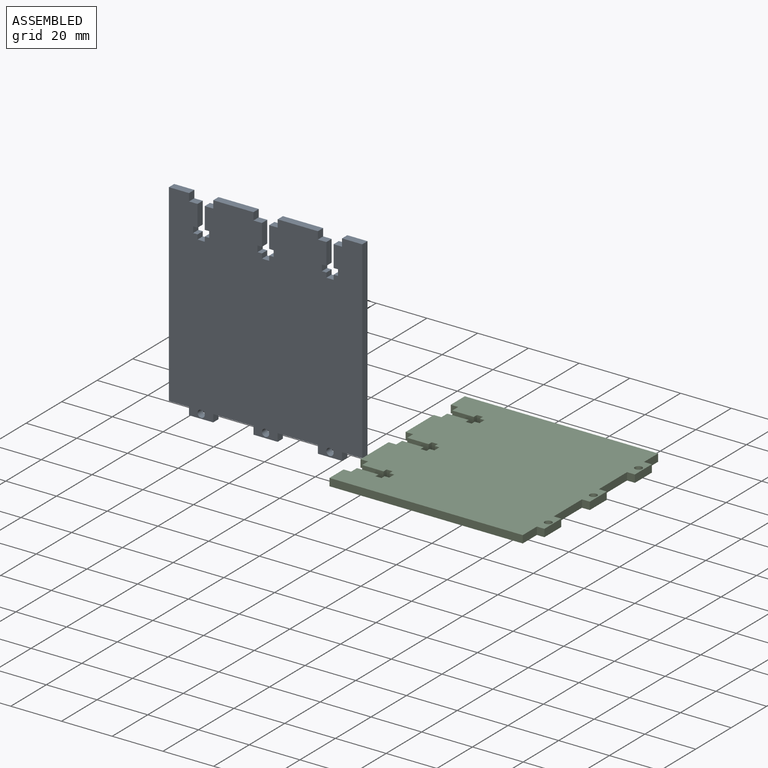
[diagram: assembled view]
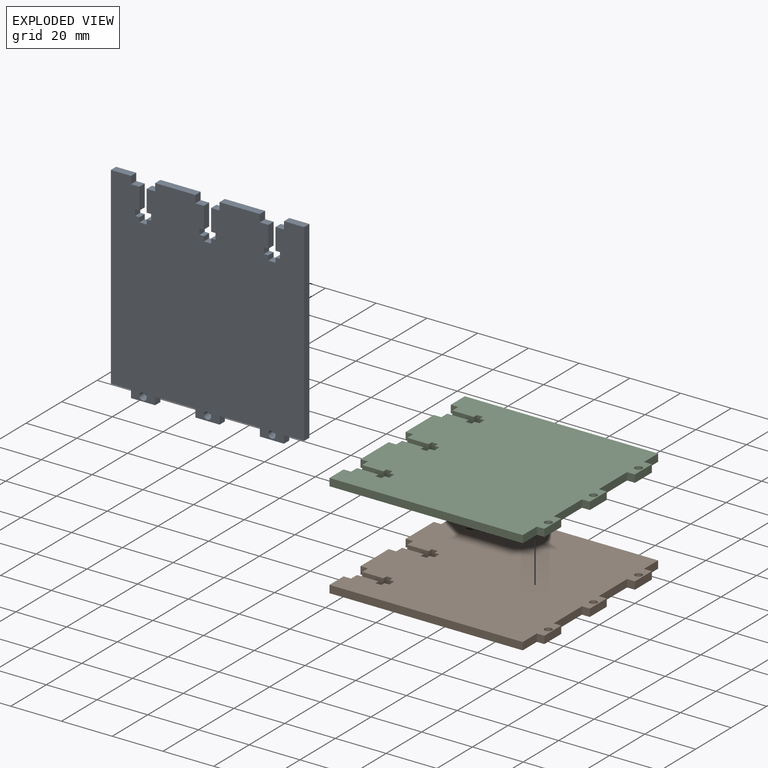
[diagram: exploded view]
GUIDED TOUR — MATED ASSEMBLY (Onshape document ab5c170677e9f72256dc8ad1, AutoMate assembly ab5c170677e9f72256dc8ad1_40245067bf3cdc795a5eb763_26f32a8a9842d287e772c296_default)

This assembly has 3 components, labeled P0..P2 below (a component is one placed occurrence of a part; the same part can appear more than once), held together by 1 mate. A mate is a constraint between two components; its type names the relative motion it leaves free:
  PARALLEL — keeps the two listed directions parallel.
Axis/direction vectors are unit vectors and 'through' points are millimeter coordinates, both in the assembly's world frame.

MATES
  1. PARALLEL "Parallel 1": P1 <-> P0, direction (0.000, 0.000, 1.000) through (18.10, 42.86, 12.25) mm

ASSEMBLY ORDER
  1. P2 — the base component [order verified]
  2. P1 [order verified]
  3. P0 [order verified]
(P1 verified with a relaxed clearance tolerance: the source model stores slight part interference there.)
Order-tag legend:
  [order verified] — this step's position reverses a verified removal order: the component was checked to insert without passing through the ones already placed.

Of the 3 components, 3 carry the full construction recipe — the FeatureScript program that regenerates the part's solid from scratch; the rest are supplied as boundary geometry only.
Each toured component is shown spotlighted twice — in the assembled view, then in the exploded view, where a leader line traces a displaced component back to its assembled socket (saturated green if recipe-attached, orange if geometry-only; every other component desaturated gray) — followed by its recipe or geometry summary and the mates that hold it.
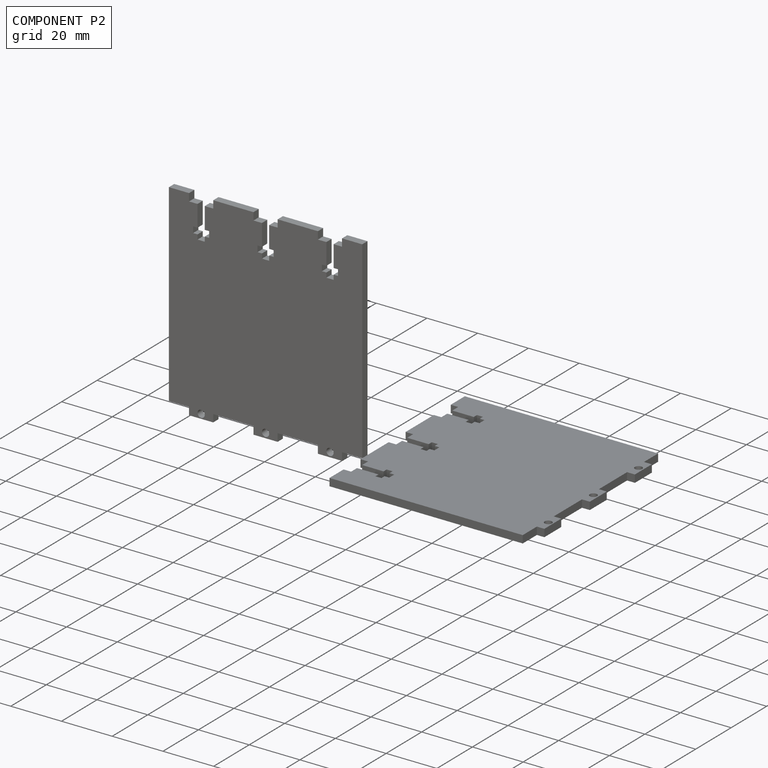
[diagram: component P2 — assembled]
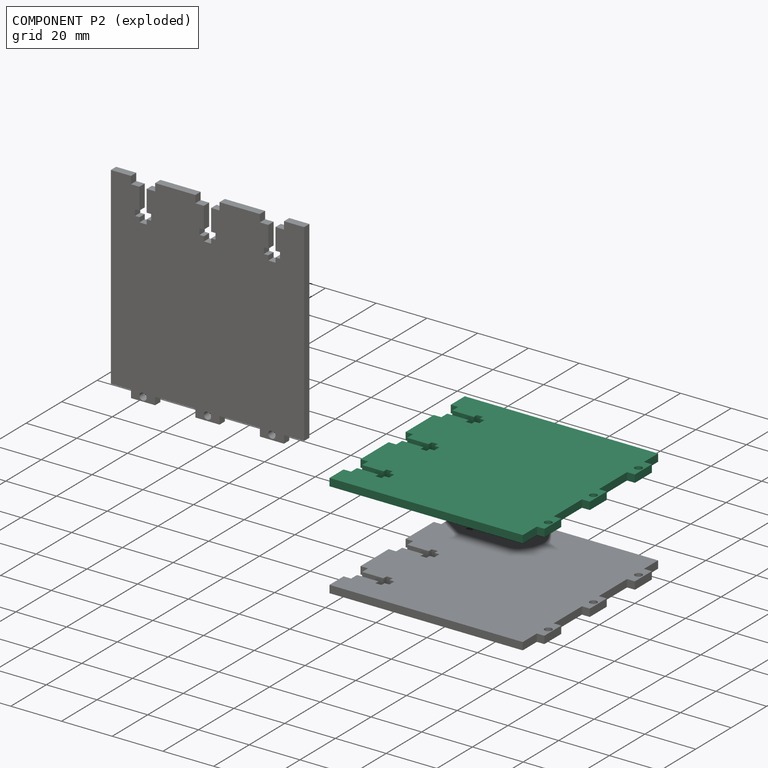
[diagram: component P2 — exploded]
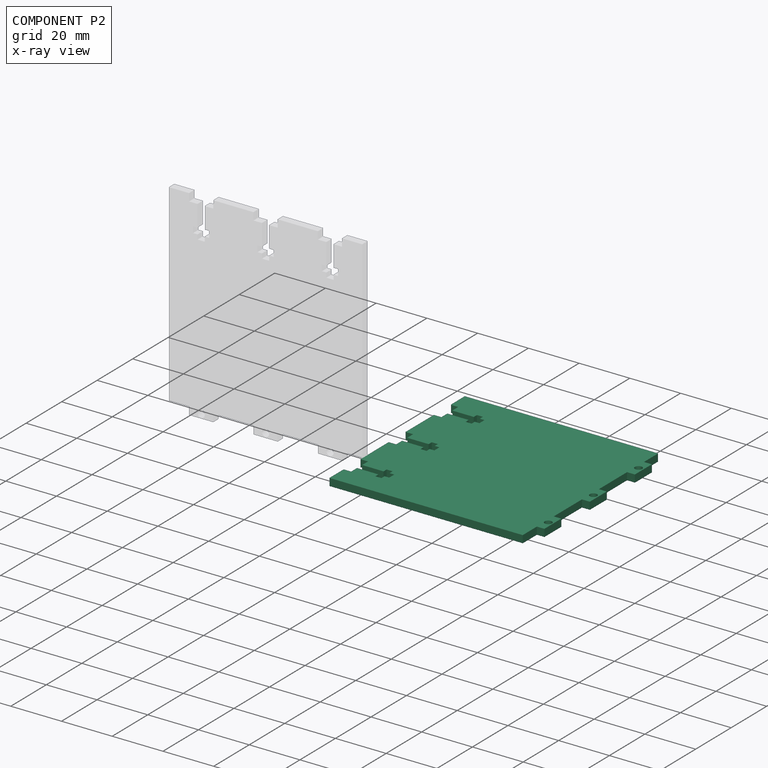
[diagram: component P2 — x-ray view]
COMPONENT P2 — same part as P0 (CADFS 00829189); its construction recipe is shown at P0.
Held by: no mates (free).
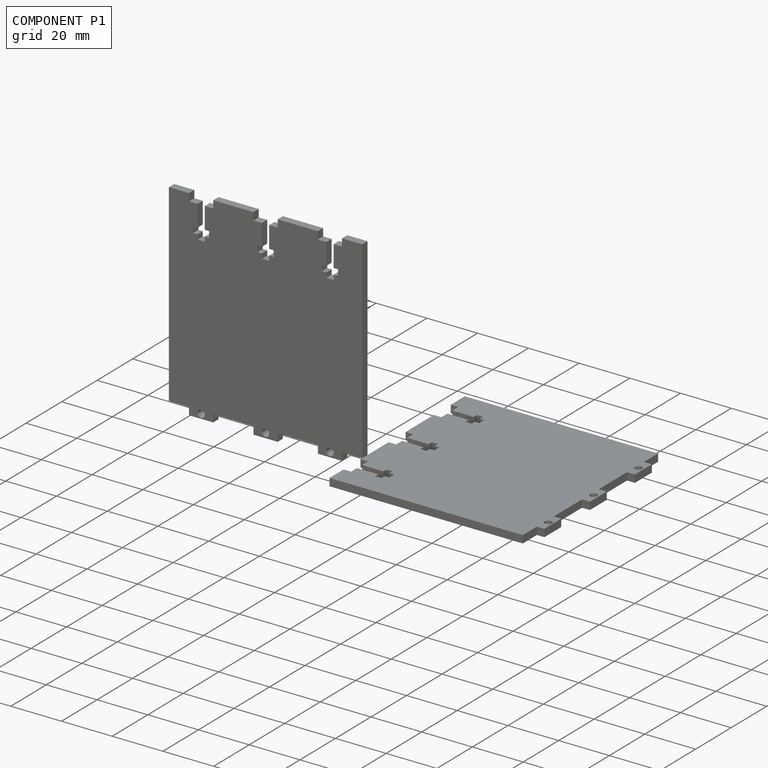
[diagram: component P1 — assembled]
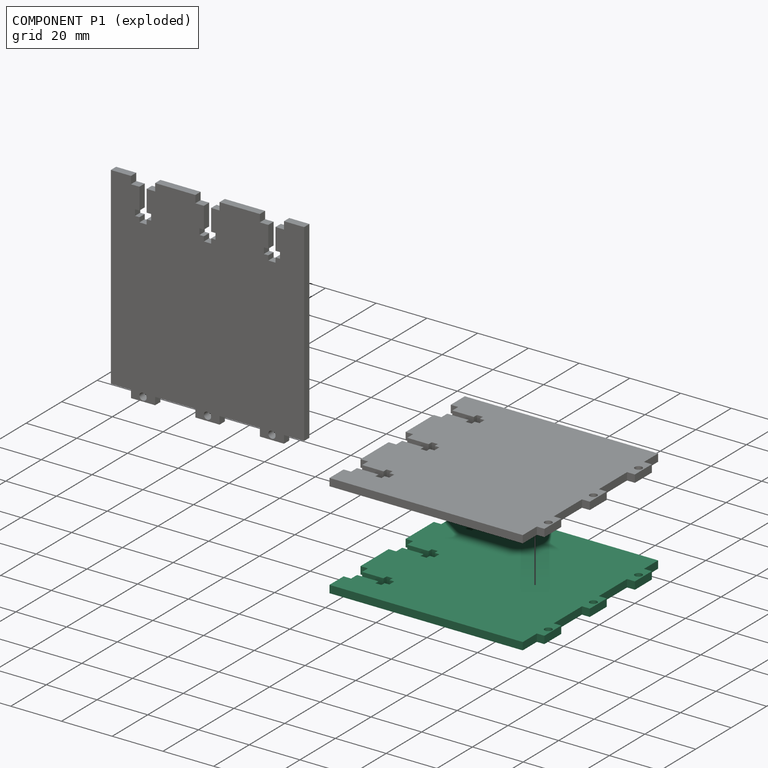
[diagram: component P1 — exploded]
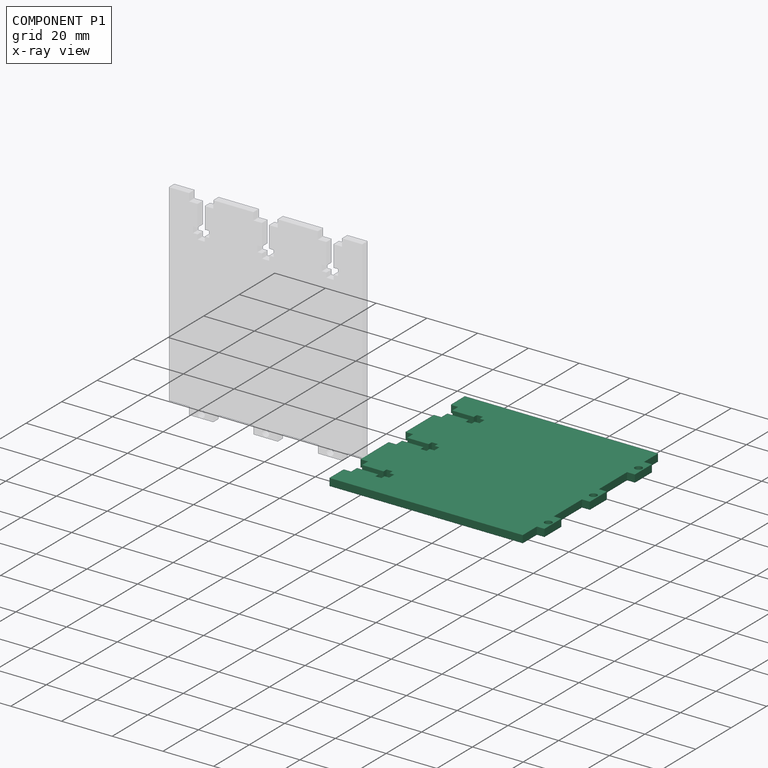
[diagram: component P1 — x-ray view]
COMPONENT P1 — same part as P0 (CADFS 00829189); its construction recipe is shown at P0.
Held by: PARALLEL mate "Parallel 1" to P0.
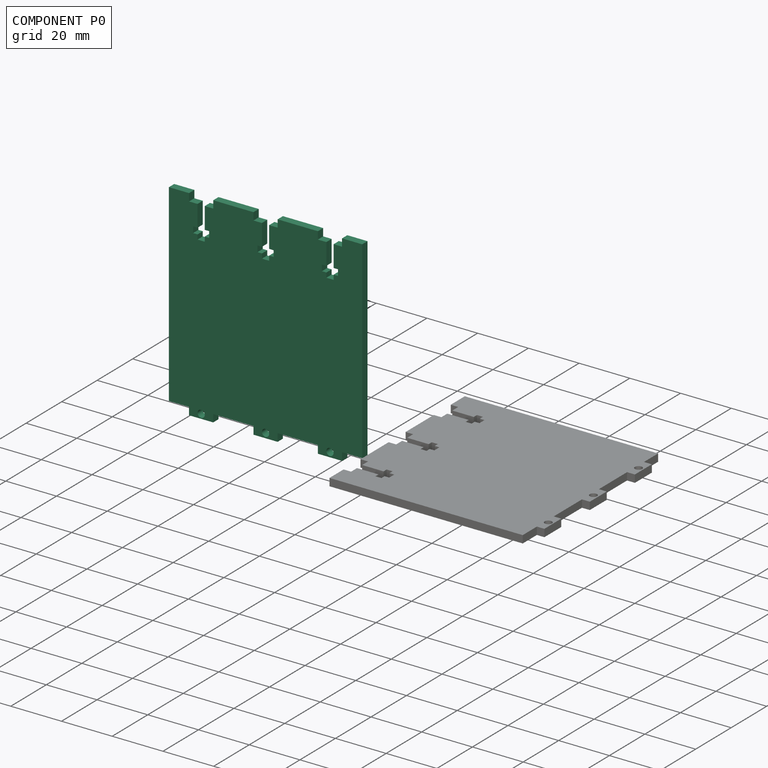
[diagram: component P0 — assembled]
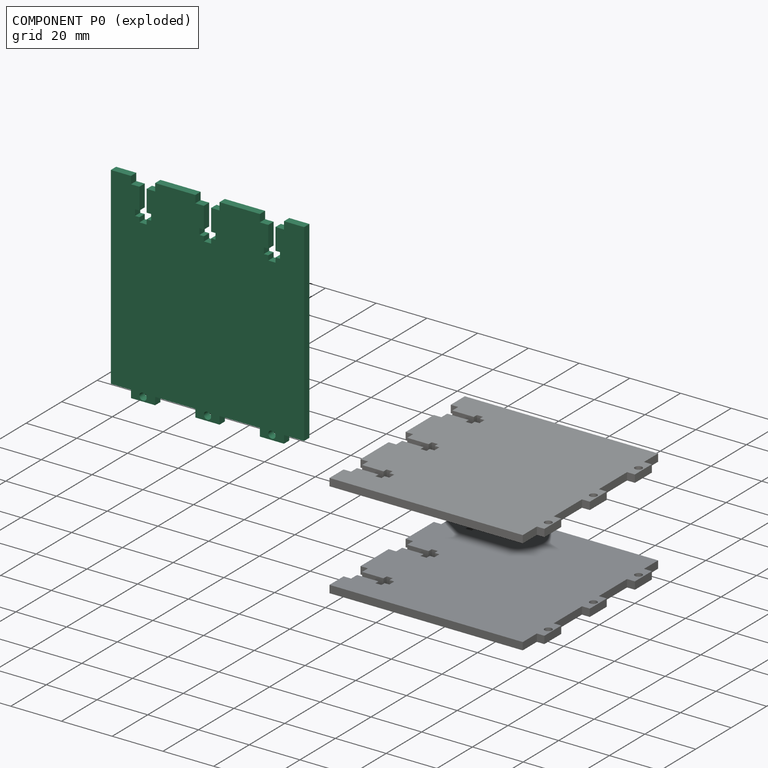
[diagram: component P0 — exploded]
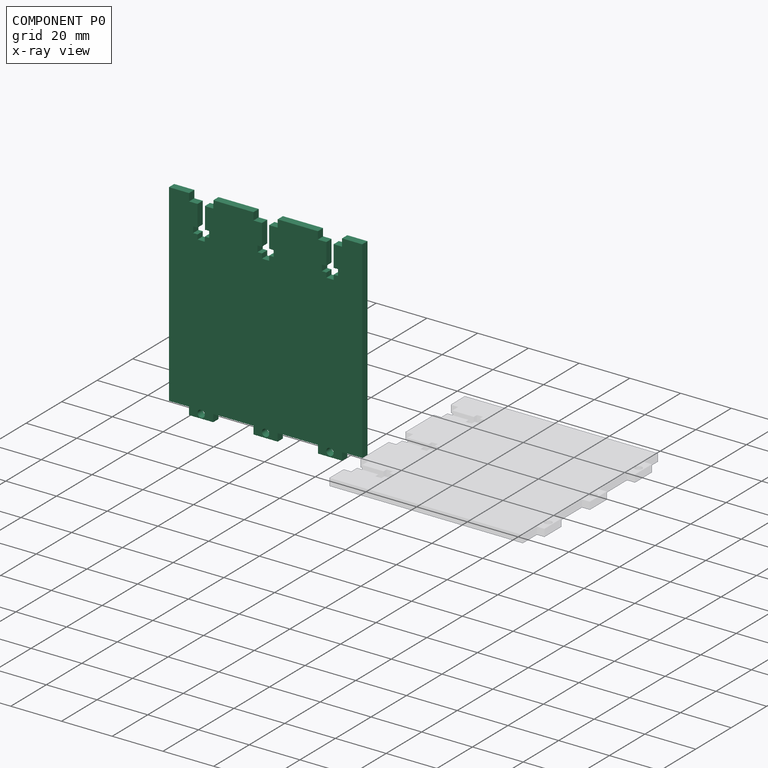
[diagram: component P0 — x-ray view]
COMPONENT P0 — recipe-attached (CADFS 00829189, mesh-verified: the recipe's output STEP matches this component's geometry to below the mesh-comparison resolution (tessellation chordal tolerance ~0.165 mm)).
Held by: PARALLEL mate "Parallel 1" to P1.
Construction recipe (FeatureScript — the CAD program that rebuilds this solid; sketch coordinates are in the units given by the * unit suffixes, e.g. mm):

FeatureScript 1511;
import(path : "onshape/std/geometry.fs", version : "1511.0");
import(path : "onshape/std/common.fs", version : "1511.0");
const mm = millimeter;
const VERTEX = EntityType.VERTEX;
const EDGE = EntityType.EDGE;
const FACE = EntityType.FACE;
const BODY = EntityType.BODY;
function v(x, y){return vector(x, y);}
function OD(order){return orderDisambiguation(order);}
function OSD(set){return originalSetDisambiguation(set);}
function TD(topology){return topologyDisambiguation(topology);}
function TDD(query){return trueDependencyDisambiguation(query);}
function sQuery(a, b, c) {return sketchEntityQuery(a, b, c);}

annotation { "Feature Type Name" : "Feature", "Feature Type Description" : "" }
export const myFeature = defineFeature(function(context is Context, id is Id, definition is map)
    precondition{}
    {
        {
            var Q0;
            Q0=qCreatedBy(makeId("Top.planeOp"),FACE);
            var sketch = newSketch(context, id + "F0", { "sketchPlane" : qUnion([Q0])});
            skLineSegment(sketch, "E0.bottom", {"start": v(0, 0) * mm, "end": v(76.2, 0) * mm});
            skLineSegment(sketch, "E0.top", {"start": v(0, 76.2) * mm, "end": v(76.2, 76.2) * mm});
            skLineSegment(sketch, "E0.left", {"start": v(0, 0) * mm, "end": v(0, 7.94) * mm});
            skLineSegment(sketch, "E0.right", {"start": v(76.2, 0) * mm, "end": v(76.2, 7.94) * mm});
            skLineSegment(sketch, "E1.bottom", {"start": v(0, 68.26) * mm, "end": v(2.97, 68.26) * mm});
            skLineSegment(sketch, "E1.top", {"start": v(0, 58.74) * mm, "end": v(2.97, 58.74) * mm});
            skLineSegment(sketch, "E1.right", {"start": v(2.97, 68.26) * mm, "end": v(2.97, 64.92) * mm});
            skLineSegment(sketch, "E2.0.1.0", {"start": v(0, 42.86) * mm, "end": v(2.97, 42.86) * mm});
            skLineSegment(sketch, "E2.0.1.1", {"start": v(2.97, 42.86) * mm, "end": v(2.97, 39.52) * mm});
            skLineSegment(sketch, "E2.0.1.2", {"start": v(0, 33.34) * mm, "end": v(2.97, 33.34) * mm});
            skLineSegment(sketch, "E2.0.2.0", {"start": v(0, 17.46) * mm, "end": v(2.97, 17.46) * mm});
            skLineSegment(sketch, "E2.0.2.1", {"start": v(2.97, 17.46) * mm, "end": v(2.97, 14.12) * mm});
            skLineSegment(sketch, "E2.0.2.2", {"start": v(0, 7.94) * mm, "end": v(2.97, 7.94) * mm});
            skLineSegment(sketch, "E2.direction2", {"start": v(0, 58.74) * mm, "end": v(0, 42.86) * mm, "construction": true});
            skLineSegment(sketch, "E3.1.0.0", {"start": v(76.2, 42.86) * mm, "end": v(79.3, 42.86) * mm});
            skLineSegment(sketch, "E3.1.0.1", {"start": v(79.3, 42.86) * mm, "end": v(79.3, 33.34) * mm});
            skLineSegment(sketch, "E3.1.0.2", {"start": v(76.2, 33.34) * mm, "end": v(79.3, 33.34) * mm});
            skLineSegment(sketch, "E3.1.0.4", {"start": v(76.2, 17.46) * mm, "end": v(79.17, 17.46) * mm});
            skLineSegment(sketch, "E3.1.0.5", {"start": v(79.17, 17.46) * mm, "end": v(79.17, 7.94) * mm});
            skLineSegment(sketch, "E3.1.0.6", {"start": v(76.2, 7.94) * mm, "end": v(79.17, 7.94) * mm});
            skLineSegment(sketch, "E3.direction1", {"start": v(0, 42.86) * mm, "end": v(76.2, 42.86) * mm, "construction": true});
            skLineSegment(sketch, "E4.0.1.0", {"start": v(76.2, 68.26) * mm, "end": v(79.3, 68.26) * mm});
            skLineSegment(sketch, "E4.0.1.1", {"start": v(79.3, 68.26) * mm, "end": v(79.3, 58.74) * mm});
            skLineSegment(sketch, "E4.0.1.2", {"start": v(76.2, 58.74) * mm, "end": v(79.3, 58.74) * mm});
            skLineSegment(sketch, "E4.direction1", {"start": v(76.2, 42.86) * mm, "end": v(101.6, 42.86) * mm, "construction": true});
            skLineSegment(sketch, "E4.direction2", {"start": v(76.2, 42.86) * mm, "end": v(76.2, 58.74) * mm, "construction": true});
            skLineSegment(sketch, "E5.trimOffspring", {"start": v(0, 68.26) * mm, "end": v(0, 76.2) * mm});
            skLineSegment(sketch, "E6.trimOffspring", {"start": v(0, 42.86) * mm, "end": v(0, 58.74) * mm});
            skLineSegment(sketch, "E7.trimOffspring", {"start": v(0, 17.46) * mm, "end": v(0, 33.34) * mm});
            skLineSegment(sketch, "E8.trimOffspring", {"start": v(76.2, 68.26) * mm, "end": v(76.2, 76.2) * mm});
            skLineSegment(sketch, "E9.trimOffspring", {"start": v(76.2, 42.86) * mm, "end": v(76.2, 58.74) * mm});
            skLineSegment(sketch, "E10.trimOffspring", {"start": v(76.2, 17.46) * mm, "end": v(76.2, 33.34) * mm});
            skLineSegment(sketch, "E11", {"start": v(2.97, 63.5) * mm, "end": v(25.02, 63.5) * mm, "construction": true});
            skLineSegment(sketch, "E12.bottom", {"start": v(2.97, 64.92) * mm, "end": v(11.44, 64.92) * mm});
            skLineSegment(sketch, "E12.top", {"start": v(2.97, 62.08) * mm, "end": v(11.44, 62.08) * mm});
            skLineSegment(sketch, "E12.right", {"start": v(15.67, 64.92) * mm, "end": v(15.67, 62.08) * mm});
            skLineSegment(sketch, "E13.bottom", {"start": v(11.44, 66.68) * mm, "end": v(13.82, 66.68) * mm});
            skLineSegment(sketch, "E13.top", {"start": v(11.44, 60.33) * mm, "end": v(13.82, 60.33) * mm});
            skLineSegment(sketch, "E13.left", {"start": v(11.44, 66.68) * mm, "end": v(11.44, 64.92) * mm});
            skLineSegment(sketch, "E13.right", {"start": v(13.82, 66.68) * mm, "end": v(13.82, 64.92) * mm});
            skLineSegment(sketch, "E14.trimOffspring", {"start": v(11.44, 62.08) * mm, "end": v(11.44, 60.33) * mm});
            skLineSegment(sketch, "E15.trimOffspring", {"start": v(13.82, 64.92) * mm, "end": v(15.67, 64.92) * mm});
            skLineSegment(sketch, "E16.trimOffspring", {"start": v(13.82, 62.08) * mm, "end": v(13.82, 60.33) * mm});
            skLineSegment(sketch, "E17.trimOffspring", {"start": v(13.82, 62.08) * mm, "end": v(15.67, 62.08) * mm});
            skLineSegment(sketch, "E18.trimOffspring", {"start": v(2.97, 62.08) * mm, "end": v(2.97, 58.74) * mm});
            skLineSegment(sketch, "E19.0.1.0", {"start": v(2.97, 39.52) * mm, "end": v(11.44, 39.52) * mm});
            skLineSegment(sketch, "E19.0.1.1", {"start": v(11.44, 41.28) * mm, "end": v(11.44, 39.52) * mm});
            skLineSegment(sketch, "E19.0.1.2", {"start": v(11.44, 41.28) * mm, "end": v(13.82, 41.28) * mm});
            skLineSegment(sketch, "E19.0.1.3", {"start": v(13.82, 41.28) * mm, "end": v(13.82, 39.52) * mm});
            skLineSegment(sketch, "E19.0.1.4", {"start": v(13.82, 39.52) * mm, "end": v(15.67, 39.52) * mm});
            skLineSegment(sketch, "E19.0.1.5", {"start": v(15.67, 39.52) * mm, "end": v(15.67, 36.68) * mm});
            skLineSegment(sketch, "E19.0.1.6", {"start": v(13.82, 36.68) * mm, "end": v(15.67, 36.68) * mm});
            skLineSegment(sketch, "E19.0.1.7", {"start": v(13.82, 36.68) * mm, "end": v(13.82, 34.93) * mm});
            skLineSegment(sketch, "E19.0.1.8", {"start": v(11.44, 34.93) * mm, "end": v(13.82, 34.93) * mm});
            skLineSegment(sketch, "E19.0.1.9", {"start": v(11.44, 36.68) * mm, "end": v(11.44, 34.93) * mm});
            skLineSegment(sketch, "E19.0.1.10", {"start": v(2.97, 36.68) * mm, "end": v(11.44, 36.68) * mm});
            skLineSegment(sketch, "E19.0.2.0", {"start": v(2.97, 14.12) * mm, "end": v(11.44, 14.12) * mm});
            skLineSegment(sketch, "E19.0.2.1", {"start": v(11.44, 15.88) * mm, "end": v(11.44, 14.12) * mm});
            skLineSegment(sketch, "E19.0.2.2", {"start": v(11.44, 15.88) * mm, "end": v(13.82, 15.88) * mm});
            skLineSegment(sketch, "E19.0.2.3", {"start": v(13.82, 15.88) * mm, "end": v(13.82, 14.12) * mm});
            skLineSegment(sketch, "E19.0.2.4", {"start": v(13.82, 14.12) * mm, "end": v(15.67, 14.12) * mm});
            skLineSegment(sketch, "E19.0.2.5", {"start": v(15.67, 14.12) * mm, "end": v(15.67, 11.28) * mm});
            skLineSegment(sketch, "E19.0.2.6", {"start": v(13.82, 11.28) * mm, "end": v(15.67, 11.28) * mm});
            skLineSegment(sketch, "E19.0.2.7", {"start": v(13.82, 11.28) * mm, "end": v(13.82, 9.53) * mm});
            skLineSegment(sketch, "E19.0.2.8", {"start": v(11.44, 9.53) * mm, "end": v(13.82, 9.53) * mm});
            skLineSegment(sketch, "E19.0.2.9", {"start": v(11.44, 11.28) * mm, "end": v(11.44, 9.53) * mm});
            skLineSegment(sketch, "E19.0.2.10", {"start": v(2.97, 11.28) * mm, "end": v(11.44, 11.28) * mm});
            skLineSegment(sketch, "E19.direction1", {"start": v(2.97, 62.08) * mm, "end": v(28.37, 62.08) * mm, "construction": true});
            skLineSegment(sketch, "E19.direction2", {"start": v(2.97, 62.08) * mm, "end": v(2.97, 39.52) * mm, "construction": true});
            skLineSegment(sketch, "E20.trimOffspring", {"start": v(2.97, 36.68) * mm, "end": v(2.97, 33.34) * mm});
            skLineSegment(sketch, "E21.trimOffspring", {"start": v(2.97, 11.28) * mm, "end": v(2.97, 7.94) * mm});
            skCircle(sketch, "E22", {"center": v(77.4, 63.5) * mm, "radius": 1.42 * mm});
            skPoint(sketch, "E22.centerSnap0", {"position": v(79.3, 63.5) * mm});
            skCircle(sketch, "E23.0.1.0", {"center": v(77.4, 38.1) * mm, "radius": 1.42 * mm});
            skLineSegment(sketch, "E23.direction1", {"start": v(77.4, 63.5) * mm, "end": v(102.8, 63.5) * mm, "construction": true});
            skLineSegment(sketch, "E23.direction2", {"start": v(77.4, 63.5) * mm, "end": v(77.4, 38.1) * mm, "construction": true});
            skCircle(sketch, "E24.0.0.2", {"center": v(77.4, 12.7) * mm, "radius": 1.42 * mm});
            skSolve(sketch);
        }
        {
            var Q0;
            Q0=makeQuery(id+"F0.imprint","IMPRINT",FACE,{"disambiguationData":[TD([[makeQuery(id+"F0.imprint","IMPRINT",EDGE,{"derivedFrom":sQuery(id+"F0.wireOp",EDGE,"E0.bottom")}),1.0]])]});
            extrude(context, id + "F1", {"entities" : qUnion([Q0]), "depth" : 2.97 * mm, "offsetDistance" : 25.4 * mm});
        }
    });
PROVENANCE & LICENSES
Assembly (occurrences, transforms, mates, per-part STEP geometry): AutoMate dataset, Zenodo record 7776208, CC0.
Construction recipes: CADFS (HuggingFace VladPyatov/CADFS, CC-BY-4.0, layered over the ABC dataset), FeatureScript reconstruction programs keyed by ABC model id.
Join: ABC meta listings map ABC model id -> Onshape documentId; within a shared document, parts are matched by geometric signature (bounding-box dims + volume at 0.1% relative tolerance, exact B-rep face/solid counts).
Verification: 3 of this assembly's 3 components carry a recipe attachment, and every attachment is mesh-verified: the CADFS STEP and the AutoMate member STEP were compared as meshes in their shared local frame (symmetric sampled-point-to-mesh distance); worst across the 3 attachments: below the mesh-comparison resolution (tessellation chordal tolerance ~0.165 mm) on a 110 mm part.
Renders: orthographic iso camera (az 35 / el 25); the floor grid conveys scale (grid pitch printed in each image; no ruler). In the exploded view each component is displaced by its stored offset vector: the offsets alone carry the explosion direction (mate normal/axis signs are not orientation cues and do not encode it), and separation distances are assigned per mate-chain, not proportionally to assembly-order depth.
